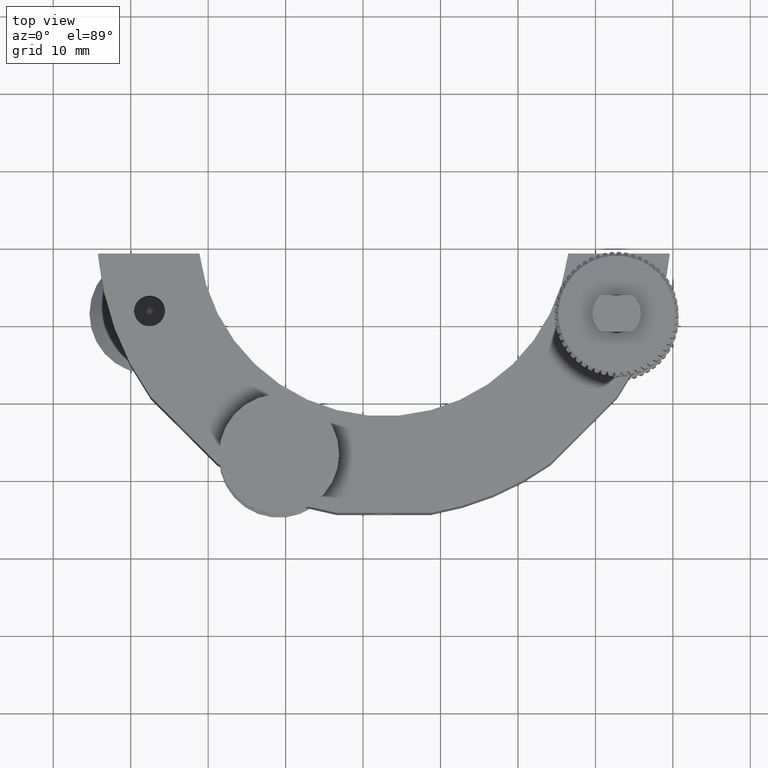
[diagram: clean part render]
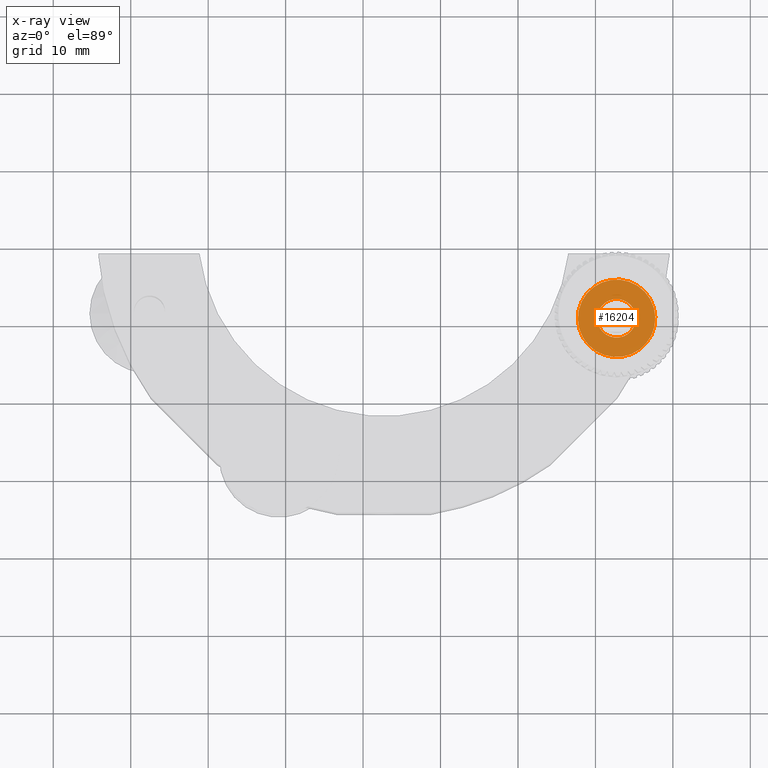
[diagram: x-ray — body ghosted, one internal face saturated and labeled with its STEP entity id]
A machine part, top view, then the same camera in x-ray: the body is ghosted and one INTERNAL B-rep face — a face not visible from any outside direction — is saturated and labeled: STEP entity #16204.
In plain terms, the highlighted planar face has unit normal (-0, -0, 1).
Its self-contained STEP definition (entity closure, byte-faithful):
#646 = CARTESIAN_POINT ( 'NONE',  ( 32.72957168722360400, -9.101940590081937900, -13.79999999999997100 ) ) ;
#806 = CIRCLE ( 'NONE', #6767, 5.000000000000051500 ) ;
#999 = ORIENTED_EDGE ( 'NONE', *, *, #8744, .T. ) ;
#2014 = CIRCLE ( 'NONE', #7345, 2.500000000000015100 ) ;
#2357 = DIRECTION ( 'NONE',  ( -1.533387788057742900E-030, -1.224606353822375500E-016, 1.000000000000000000 ) ) ;
#2422 = CARTESIAN_POINT ( 'NONE',  ( 32.72957168722360400, -9.101940590081937900, -13.79999999999997100 ) ) ;
#3602 = EDGE_CURVE ( 'NONE', #11879, #7079, #2014, .T. ) ;
#3625 = VERTEX_POINT ( 'NONE', #15838 ) ;
#4747 = VERTEX_POINT ( 'NONE', #10389 ) ;
#4926 = DIRECTION ( 'NONE',  ( -1.060031841390734800E-030, -1.224606353822387100E-016, 1.000000000000000000 ) ) ;
#5274 = CIRCLE ( 'NONE', #14244, 5.000000000000051500 ) ;
#6045 = AXIS2_PLACEMENT_3D ( 'NONE', #7089, #16865, #8362 ) ;
#6374 = PLANE ( 'NONE',  #8112 ) ;
#6767 = AXIS2_PLACEMENT_3D ( 'NONE', #9811, #16743, #12705 ) ;
#7079 = VERTEX_POINT ( 'NONE', #9252 ) ;
#7089 = CARTESIAN_POINT ( 'NONE',  ( 32.72957168722360400, -9.101940590081937900, -13.79999999999997100 ) ) ;
#7345 = AXIS2_PLACEMENT_3D ( 'NONE', #13063, #8841, #15900 ) ;
#7618 = DIRECTION ( 'NONE',  ( -0.3830490080632385500, 0.9237280213470677700, 1.131203204145396700E-016 ) ) ;
#7885 = FACE_BOUND ( 'NONE', #11296, .T. ) ;
#8024 = DIRECTION ( 'NONE',  ( -0.3830490080632383800, 0.9237280213470678800, 0.0000000000000000000 ) ) ;
#8112 = AXIS2_PLACEMENT_3D ( 'NONE', #646, #4926, #7618 ) ;
#8220 = ORIENTED_EDGE ( 'NONE', *, *, #15916, .T. ) ;
#8362 = DIRECTION ( 'NONE',  ( -0.3830490080632386100, 0.9237280213470678800, 0.0000000000000000000 ) ) ;
#8744 = EDGE_CURVE ( 'NONE', #3625, #4747, #806, .T. ) ;
#8841 = DIRECTION ( 'NONE',  ( -1.533387788057742900E-030, -1.224606353822375500E-016, 1.000000000000000000 ) ) ;
#9252 = CARTESIAN_POINT ( 'NONE',  ( 31.77194916706550000, -6.792620536714253800, -13.79999999999997100 ) ) ;
#9811 = CARTESIAN_POINT ( 'NONE',  ( 32.72957168722360400, -9.101940590081937900, -13.79999999999997100 ) ) ;
#10008 = EDGE_CURVE ( 'NONE', #7079, #11879, #17501, .T. ) ;
#10389 = CARTESIAN_POINT ( 'NONE',  ( 30.81432664690739300, -4.483300483346551100, -13.79999999999997100 ) ) ;
#10392 = CARTESIAN_POINT ( 'NONE',  ( 33.68719420738170100, -11.41126064344959800, -13.79999999999997100 ) ) ;
#11296 = EDGE_LOOP ( 'NONE', ( #15364, #14623 ) ) ;
#11879 = VERTEX_POINT ( 'NONE', #10392 ) ;
#12705 = DIRECTION ( 'NONE',  ( -0.3830490080632383800, 0.9237280213470678800, 0.0000000000000000000 ) ) ;
#13063 = CARTESIAN_POINT ( 'NONE',  ( 32.72957168722360400, -9.101940590081937900, -13.79999999999997100 ) ) ;
#14244 = AXIS2_PLACEMENT_3D ( 'NONE', #2422, #2357, #8024 ) ;
#14623 = ORIENTED_EDGE ( 'NONE', *, *, #3602, .F. ) ;
#15364 = ORIENTED_EDGE ( 'NONE', *, *, #10008, .F. ) ;
#15706 = FACE_OUTER_BOUND ( 'NONE', #17223, .T. ) ;
#15838 = CARTESIAN_POINT ( 'NONE',  ( 34.64481672753979100, -13.72058069681727800, -13.79999999999997100 ) ) ;
#15900 = DIRECTION ( 'NONE',  ( -0.3830490080632386100, 0.9237280213470678800, 0.0000000000000000000 ) ) ;
#15916 = EDGE_CURVE ( 'NONE', #4747, #3625, #5274, .T. ) ;
#16204 = ADVANCED_FACE ( 'NONE', ( #7885, #15706 ), #6374, .T. ) ;
#16743 = DIRECTION ( 'NONE',  ( -1.533387788057742900E-030, -1.224606353822375500E-016, 1.000000000000000000 ) ) ;
#16865 = DIRECTION ( 'NONE',  ( -1.533387788057742900E-030, -1.224606353822375500E-016, 1.000000000000000000 ) ) ;
#17223 = EDGE_LOOP ( 'NONE', ( #8220, #999 ) ) ;
#17501 = CIRCLE ( 'NONE', #6045, 2.500000000000015100 ) ;